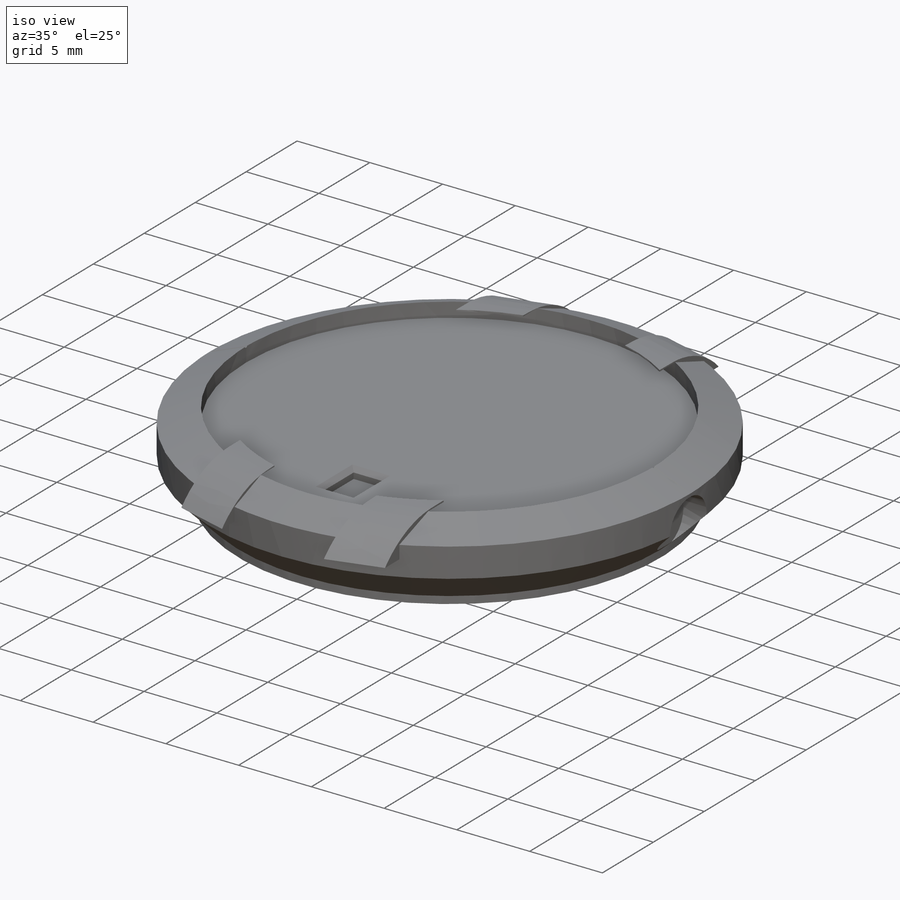
[diagram: iso view]
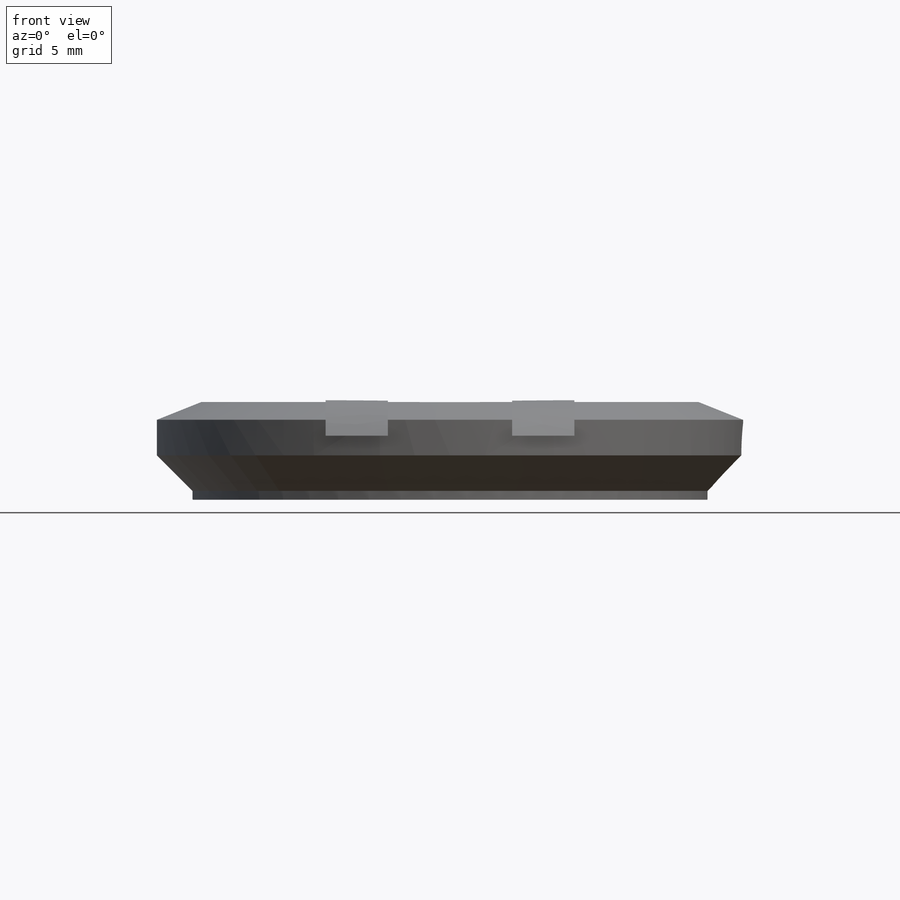
[diagram: front view]
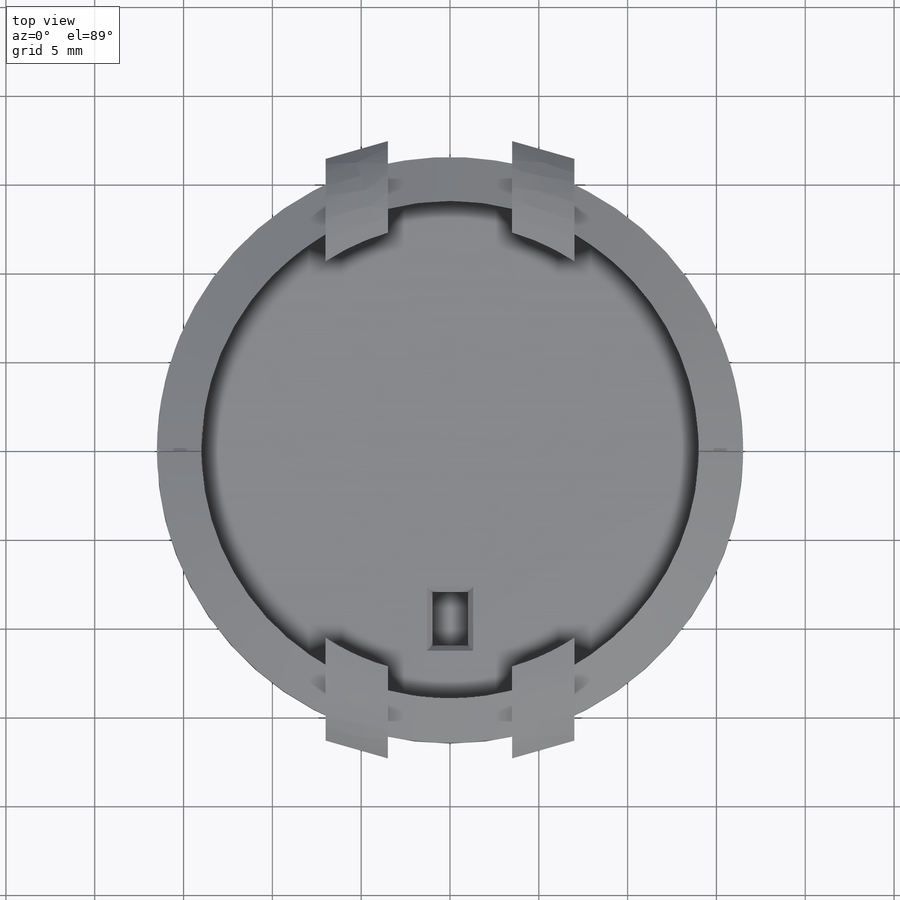
[diagram: top view]
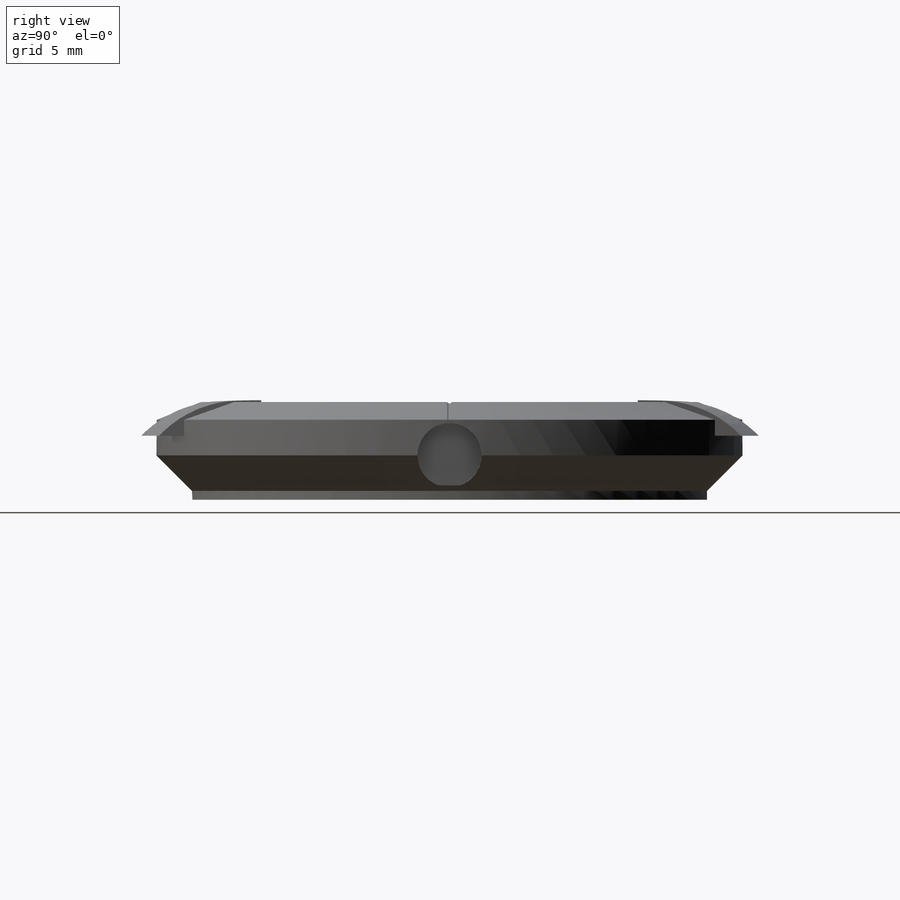
[diagram: right view]
SOLIDWORKS PART (.sldprt)
format: sldprt  version: not decoded by parser v0  size: 619,008 bytes
history: native  units: mm
features: sketch x12, cut_extrude x9, chamfer x3, plane x2, extrude x2, material x1, revolve x1, fillet x1 (+16 scaffold rows collapsed)
feature tree (47):
  scaffold x16  (default folders/planes/origin — collapsed)
  material  "Material <not specified>"
  sketch  "Sketch1"  dims[D1=4.5mm D2=1.0mm D3=1.0mm D4=2.0mm D5=2.0mm D6=14.0mm D7=2.5mm D8=2.0mm]
  revolve  "Revolve1"  Angle=360deg
  plane  "Plane1"  Offset=5.6mm
  sketch  "Sketch2"  dims[D1=3.5mm D2=3.5mm D3=1.0mm D4=1.0mm D5=17.7mm D6=17.7mm D7=3.5mm D8=3.5mm]
  extrude  "Boss-Extrude3"  Depth=2mm
  sketch  "Sketch5"  dims[D1=3.5mm D2=3.5mm D3=1.0mm D4=1.0mm D5=17.7mm D6=17.7mm D7=3.5mm D8=3.5mm]
  extrude  "Boss-Extrude4"  Depth=2mm
  sketch  "Sketch6"  dims[D1=1.3mm]
  cut_extrude  "Cut-Extrude1"  Depth=2mm
  sketch  "Sketch7"  dims[D1=44.4mm D2=10.7mm]
  cut_extrude  "Cut-Extrude3"  [1 undecoded]
  sketch  "Sketch9"  dims[D1=44.4mm D2=10.7mm]
  cut_extrude  "Cut-Extrude7"  [1 undecoded]
  sketch  "Sketch10"  dims[D1=0.0mm D2=0.0mm D3=0.0mm D4=1.0mm]
  cut_extrude  "Cut-Extrude8"  [1 undecoded]
  sketch  "Sketch11"  dims[D1=0.0mm D2=0.0mm D3=1.0mm]
  cut_extrude  "Cut-Extrude9"  [1 undecoded]
  fillet  "Fillet2"  Radius=6mm
  plane  "Plane2"  Offset=16.5mm
  sketch  "Sketch12"  dims[D1=3.6mm]
  cut_extrude  "Cut-Extrude10"  Depth=1.7mm
  sketch  "Sketch13"  dims[D1=0.07mm]
  cut_extrude  "Cut-Extrude11"  Depth=0.07mm
  chamfer  "Chamfer1"  Distance=0.09mm Angle=45deg
  sketch  "Sketch14"  dims[D1=0.07mm]
  cut_extrude  "Cut-Extrude14"  Depth=0.07mm
  chamfer  "Chamfer2"  Distance=0.09mm Angle=45deg
  sketch  "Sketch15"  dims[D1=2.0mm D2=3.0mm D3=1.0mm D4=8.0mm]
  cut_extrude  "Cut-Extrude15"  Depth=0.7mm
  chamfer  "Chamfer4"  Distance=0.3mm Angle=45deg
decode coverage: 24 of 28 modeling features carry decoded parameters
note: 4 parameter values undecoded
summary: no parameter record found for 4 features
note: suppression state not decoded; provenance and decode notes live in map.json
